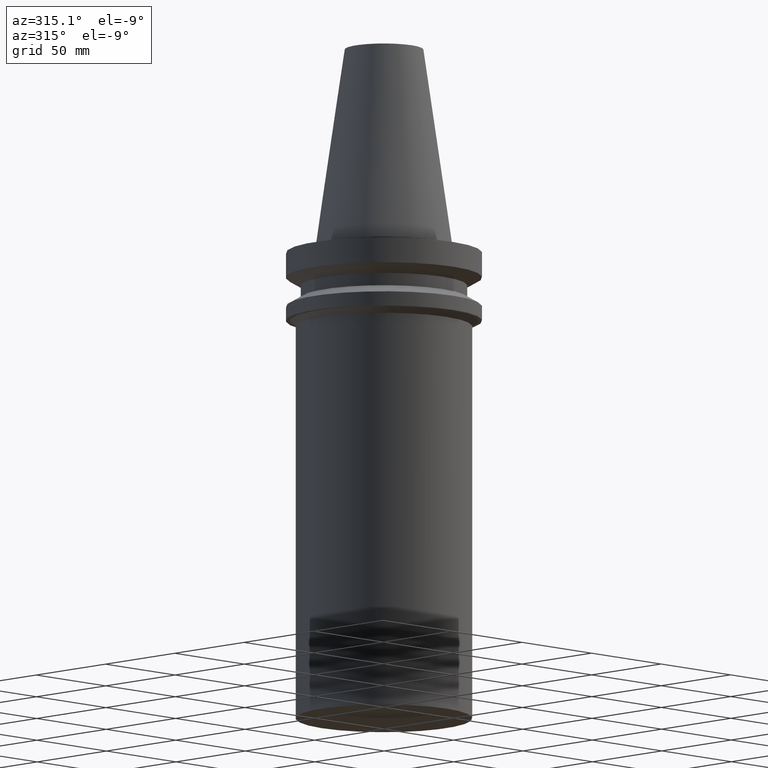
[diagram: clean part render]
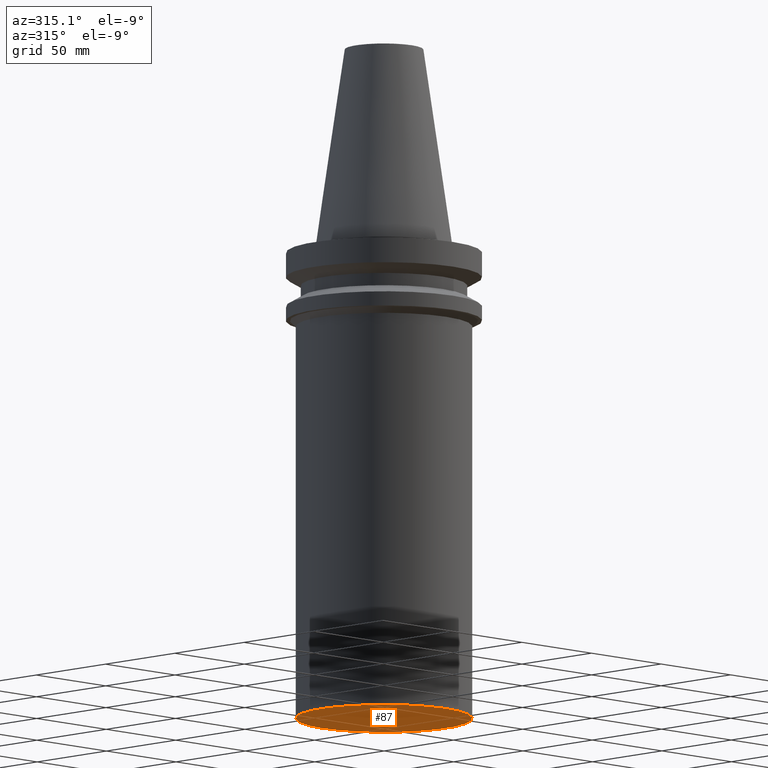
[diagram: same view with one face highlighted and labeled with its STEP entity id]
A machine part, auxiliary view. The second image highlights one B-rep face of the part: STEP entity #87.
In plain terms, the highlighted planar face has unit normal (0, 0, -1).
Its self-contained STEP definition (entity closure, byte-faithful):
#87=ADVANCED_FACE('',(#124),#125,.T.);
#124=FACE_OUTER_BOUND('',#161,.T.);
#125=PLANE('',#162);
#161=EDGE_LOOP('',(#222));
#162=AXIS2_PLACEMENT_3D('',#223,#224,#225);
#222=ORIENTED_EDGE('',*,*,#237,.T.);
#223=CARTESIAN_POINT('',(1.48794586096403E-014,22.5,-243.0));
#224=DIRECTION('',(6.12323399573677E-017,1.22464679914735E-016,-1.0));
#225=DIRECTION('',(-1.23259516440783E-032,1.0,1.22464679914735E-016));
#237=EDGE_CURVE('',#260,#260,#261,.T.);
#260=VERTEX_POINT('',#284);
#261=CIRCLE('',#285,45.0);
#284=CARTESIAN_POINT('',(1.48794586096403E-014,45.0,-243.0));
#285=AXIS2_PLACEMENT_3D('',#319,#320,#321);
#319=CARTESIAN_POINT('',(1.48794586096403E-014,2.97589172192807E-014,-243.0));
#320=DIRECTION('',(6.12323399573677E-017,1.22464679914735E-016,-1.0));
#321=DIRECTION('',(-1.23259516440783E-032,1.0,1.22464679914735E-016));